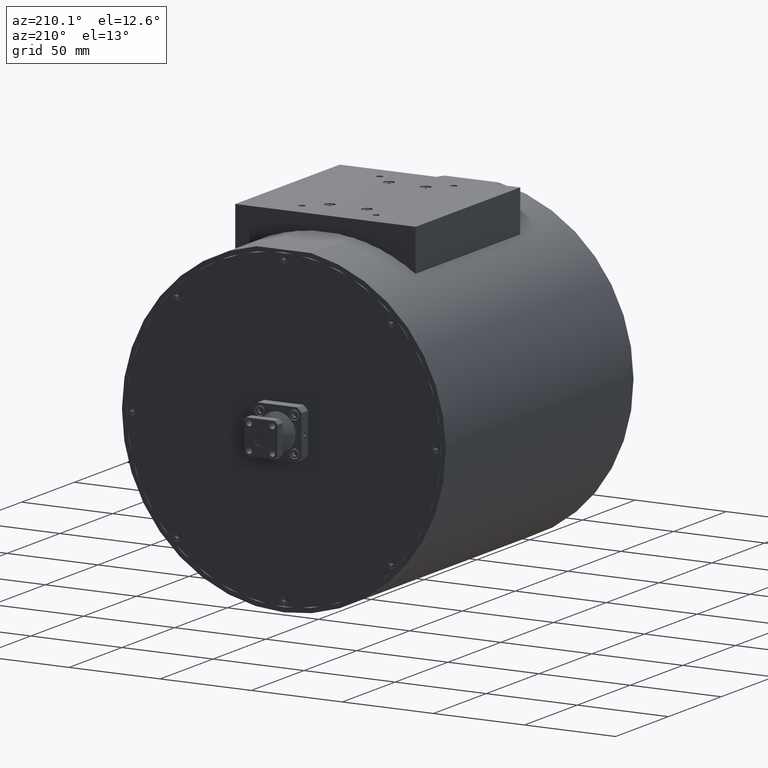
[diagram: clean part render]
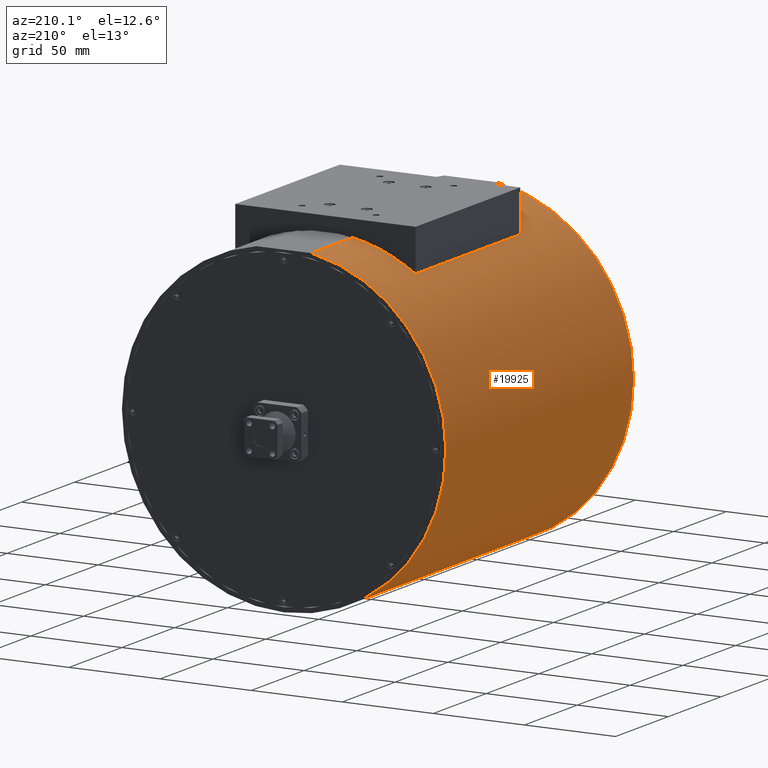
[diagram: same view with one face highlighted and labeled with its STEP entity id]
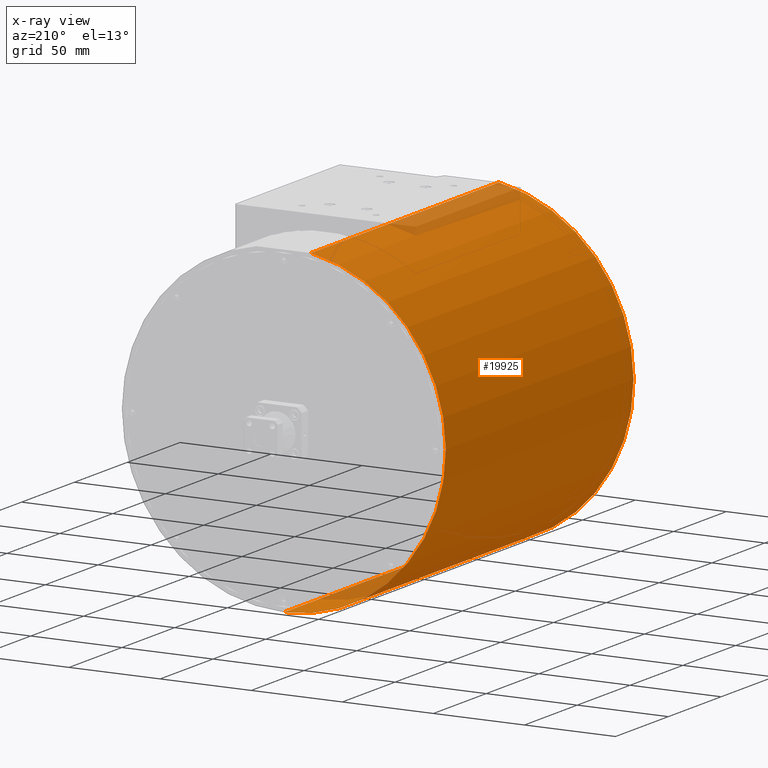
[diagram: x-ray of the same camera — body ghosted, the highlighted face saturated]
A machine part, auxiliary view. The second image highlights one B-rep face of the part: STEP entity #19925.
The next image is the same camera in x-ray: the body ghosted, the highlighted face saturated — about 5% of this face is hidden behind the body in this view.
In plain terms, the highlighted cylindrical surface (partial cylindrical patch) has radius 88.9 mm, axis along (-0, -1, -0).
Its self-contained STEP definition (entity closure, byte-faithful):
#1477 = EDGE_LOOP ( 'NONE', ( #23654, #59877, #44438, #13080 ) ) ;
#2985 = DIRECTION ( 'NONE',  ( 0.0000000000000000000, 1.000000000000000000, 0.0000000000000000000 ) ) ;
#7973 = CARTESIAN_POINT ( 'NONE',  ( -2.160252979099615900, 4.544377155374181900, 4.248720342233508700 ) ) ;
#8573 = EDGE_CURVE ( 'NONE', #14497, #41263, #16452, .T. ) ;
#13080 = ORIENTED_EDGE ( 'NONE', *, *, #27981, .T. ) ;
#13513 = DIRECTION ( 'NONE',  ( 0.0000000000000000000, 0.0000000000000000000, 1.000000000000000000 ) ) ;
#14497 = VERTEX_POINT ( 'NONE', #27281 ) ;
#15267 = DIRECTION ( 'NONE',  ( 0.0000000000000000000, 1.000000000000000000, 0.0000000000000000000 ) ) ;
#16452 = LINE ( 'NONE', #57058, #29174 ) ;
#16535 = FACE_OUTER_BOUND ( 'NONE', #1477, .T. ) ;
#17030 = CARTESIAN_POINT ( 'NONE',  ( -2.160252979099615900, 4.544377155374181900, 4.248720342233508700 ) ) ;
#18662 = EDGE_CURVE ( 'NONE', #41263, #28400, #36541, .T. ) ;
#19925 = ADVANCED_FACE ( 'NONE', ( #16535 ), #49268, .T. ) ;
#21689 = EDGE_CURVE ( 'NONE', #14497, #65032, #54735, .T. ) ;
#23654 = ORIENTED_EDGE ( 'NONE', *, *, #21689, .F. ) ;
#27281 = CARTESIAN_POINT ( 'NONE',  ( -1.570761672972037500, 4.544377155374181900, -2.701279657766491500 ) ) ;
#27981 = EDGE_CURVE ( 'NONE', #28400, #65032, #54586, .T. ) ;
#28400 = VERTEX_POINT ( 'NONE', #47602 ) ;
#29174 = VECTOR ( 'NONE', #56619, 39.37007874015748100 ) ;
#34032 = CARTESIAN_POINT ( 'NONE',  ( -1.570761672972037500, -2.455622844625818100, 0.7987203422335083000 ) ) ;
#35140 = DIRECTION ( 'NONE',  ( 0.0000000000000000000, 0.0000000000000000000, 1.000000000000000000 ) ) ;
#36541 = CIRCLE ( 'NONE', #51833, 3.500000000000000000 ) ;
#36915 = CARTESIAN_POINT ( 'NONE',  ( -1.570761672972037500, 4.544377155374181900, 0.7987203422335083000 ) ) ;
#38011 = CARTESIAN_POINT ( 'NONE',  ( -1.570761672972037500, -2.455622844625818100, -2.701279657766491500 ) ) ;
#41263 = VERTEX_POINT ( 'NONE', #38011 ) ;
#44438 = ORIENTED_EDGE ( 'NONE', *, *, #18662, .T. ) ;
#46511 = DIRECTION ( 'NONE',  ( -0.0000000000000000000, -1.000000000000000000, -0.0000000000000000000 ) ) ;
#47380 = DIRECTION ( 'NONE',  ( 0.0000000000000000000, 0.0000000000000000000, -1.000000000000000000 ) ) ;
#47602 = CARTESIAN_POINT ( 'NONE',  ( -2.160252979099615900, -2.455622844625818100, 4.248720342233508700 ) ) ;
#48900 = AXIS2_PLACEMENT_3D ( 'NONE', #36915, #46511, #47380 ) ;
#49268 = CYLINDRICAL_SURFACE ( 'NONE', #48900, 3.500000000000000000 ) ;
#51414 = CARTESIAN_POINT ( 'NONE',  ( -1.570761672972037500, 4.544377155374181900, 0.7987203422335083000 ) ) ;
#51833 = AXIS2_PLACEMENT_3D ( 'NONE', #34032, #65363, #13513 ) ;
#54586 = LINE ( 'NONE', #7973, #59403 ) ;
#54735 = CIRCLE ( 'NONE', #60177, 3.500000000000000000 ) ;
#56619 = DIRECTION ( 'NONE',  ( -0.0000000000000000000, -1.000000000000000000, -0.0000000000000000000 ) ) ;
#57058 = CARTESIAN_POINT ( 'NONE',  ( -1.570761672972037500, 4.544377155374181900, -2.701279657766491500 ) ) ;
#59403 = VECTOR ( 'NONE', #2985, 39.37007874015748100 ) ;
#59877 = ORIENTED_EDGE ( 'NONE', *, *, #8573, .T. ) ;
#60177 = AXIS2_PLACEMENT_3D ( 'NONE', #51414, #15267, #35140 ) ;
#65032 = VERTEX_POINT ( 'NONE', #17030 ) ;
#65363 = DIRECTION ( 'NONE',  ( 0.0000000000000000000, 1.000000000000000000, 0.0000000000000000000 ) ) ;